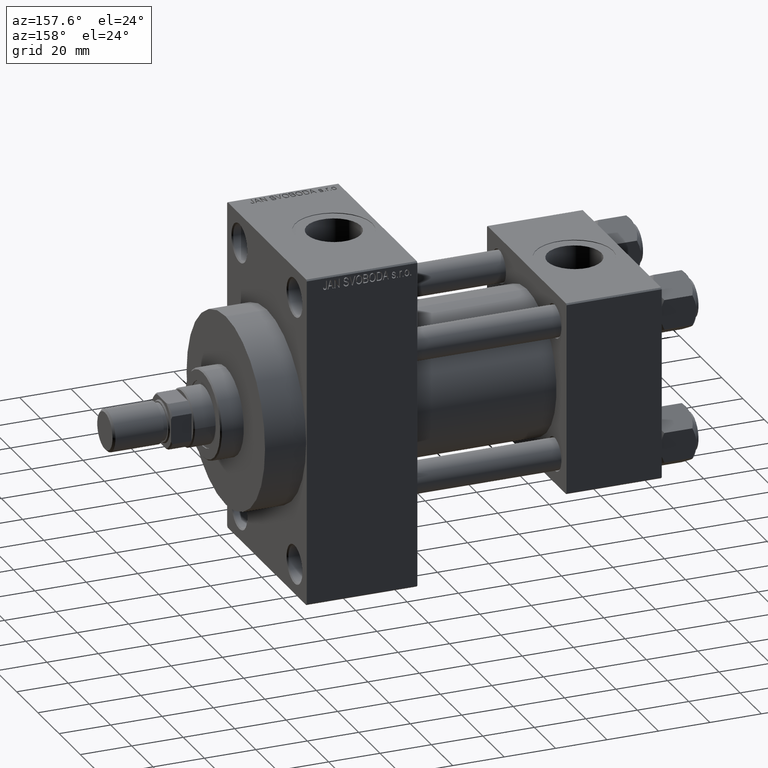
[diagram: clean part render]
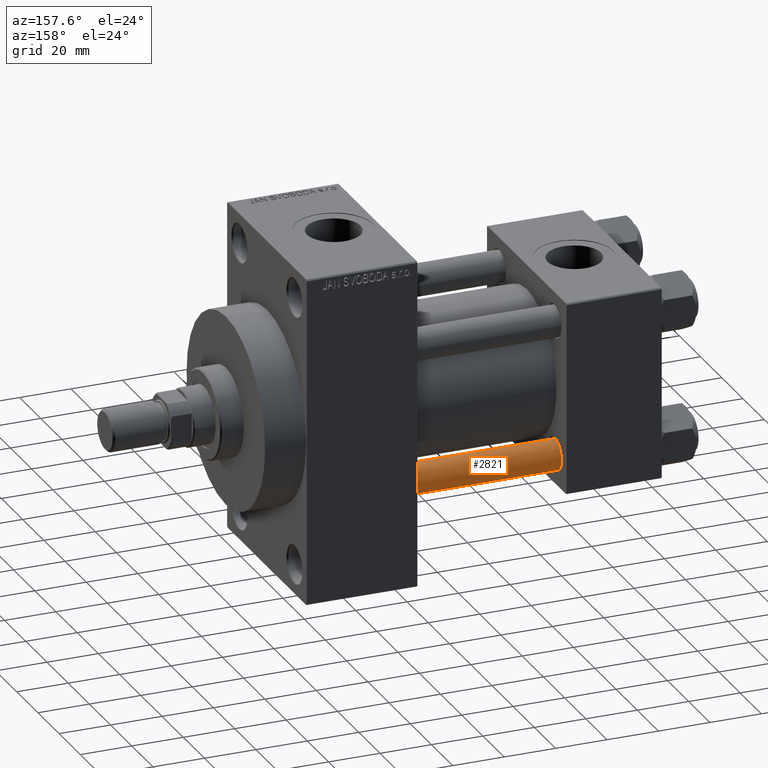
[diagram: same view with one face highlighted and labeled with its STEP entity id]
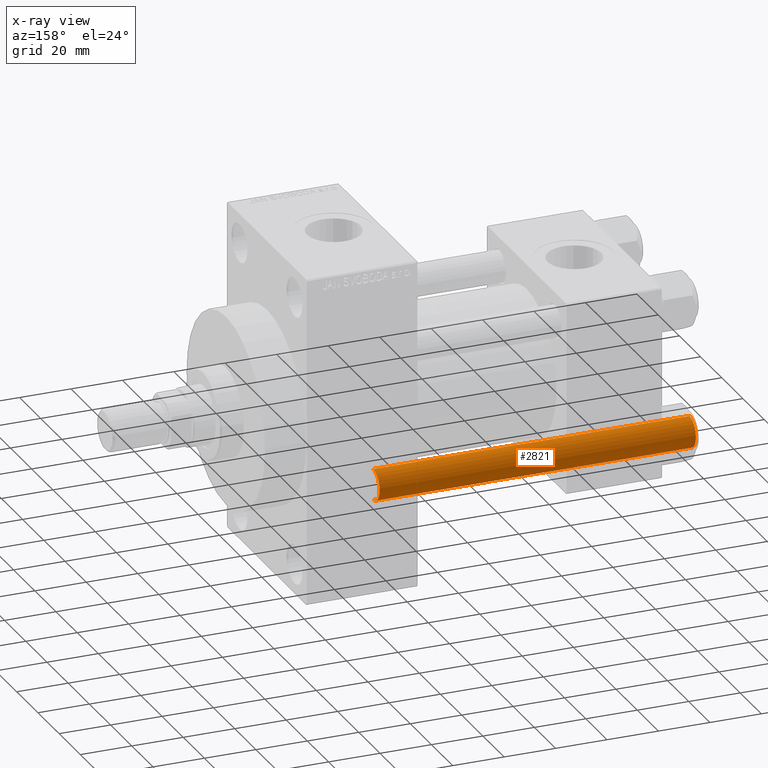
[diagram: x-ray of the same camera — body ghosted, the highlighted face saturated]
A machine part, auxiliary view. The second image highlights one B-rep face of the part: STEP entity #2821.
The next image is the same camera in x-ray: the body ghosted, the highlighted face saturated — about 0% of this face is hidden behind the body in this view.
In plain terms, the highlighted cylindrical surface (edge-blend (fillet) strip) has radius 6 mm, axis along (-1, -0, 0).
Its self-contained STEP definition (entity closure, byte-faithful):
#311 = AXIS2_PLACEMENT_3D ( 'NONE', #5234, #24478, #5459 ) ;
#835 = EDGE_CURVE ( 'NONE', #28474, #23954, #3345, .T. ) ;
#967 = AXIS2_PLACEMENT_3D ( 'NONE', #23899, #23435, #27051 ) ;
#2082 = FACE_OUTER_BOUND ( 'NONE', #7918, .T. ) ;
#2821 = ADVANCED_FACE ( 'NONE', ( #2082 ), #16778, .T. ) ;
#3345 = CIRCLE ( 'NONE', #33344, 6.000000000000000888 ) ;
#4822 = CIRCLE ( 'NONE', #967, 6.000000000000000888 ) ;
#5234 = CARTESIAN_POINT ( 'NONE',  ( 0.000000000000000000, 0.000000000000000000, 124.0000000000000000 ) ) ;
#5459 = DIRECTION ( 'NONE',  ( -1.000000000000000000, 0.000000000000000000, 0.000000000000000000 ) ) ;
#6978 = LINE ( 'NONE', #18070, #39544 ) ;
#7769 = ORIENTED_EDGE ( 'NONE', *, *, #15449, .T. ) ;
#7918 = EDGE_LOOP ( 'NONE', ( #7769, #9005, #15051, #10514 ) ) ;
#9005 = ORIENTED_EDGE ( 'NONE', *, *, #43031, .T. ) ;
#10514 = ORIENTED_EDGE ( 'NONE', *, *, #20252, .F. ) ;
#11154 = VECTOR ( 'NONE', #43770, 1000.000000000000000 ) ;
#11891 = CARTESIAN_POINT ( 'NONE',  ( 0.000000000000000000, 0.000000000000000000, 0.4999999999999865663 ) ) ;
#14838 = CARTESIAN_POINT ( 'NONE',  ( -6.000000000000000888, 0.000000000000000000, 124.0000000000000000 ) ) ;
#15051 = ORIENTED_EDGE ( 'NONE', *, *, #835, .T. ) ;
#15378 = CARTESIAN_POINT ( 'NONE',  ( -6.000000000000000888, 0.000000000000000000, 0.4999999999999865663 ) ) ;
#15449 = EDGE_CURVE ( 'NONE', #39922, #35637, #4822, .T. ) ;
#16778 = CYLINDRICAL_SURFACE ( 'NONE', #311, 6.000000000000000888 ) ;
#17064 = CARTESIAN_POINT ( 'NONE',  ( -6.000000000000000888, 0.000000000000000000, 123.5000000000000426 ) ) ;
#18070 = CARTESIAN_POINT ( 'NONE',  ( 6.000000000000000888, 7.347880794884120722E-16, 124.0000000000000000 ) ) ;
#19610 = DIRECTION ( 'NONE',  ( -0.000000000000000000, -0.000000000000000000, 1.000000000000000000 ) ) ;
#20252 = EDGE_CURVE ( 'NONE', #39922, #23954, #47632, .T. ) ;
#23435 = DIRECTION ( 'NONE',  ( 0.000000000000000000, 0.000000000000000000, -1.000000000000000000 ) ) ;
#23899 = CARTESIAN_POINT ( 'NONE',  ( 0.000000000000000000, 0.000000000000000000, 123.5000000000000426 ) ) ;
#23954 = VERTEX_POINT ( 'NONE', #15378 ) ;
#24478 = DIRECTION ( 'NONE',  ( -0.000000000000000000, -0.000000000000000000, -1.000000000000000000 ) ) ;
#27051 = DIRECTION ( 'NONE',  ( 1.000000000000000000, 0.000000000000000000, 0.000000000000000000 ) ) ;
#28474 = VERTEX_POINT ( 'NONE', #42763 ) ;
#33344 = AXIS2_PLACEMENT_3D ( 'NONE', #11891, #19610, #40817 ) ;
#34125 = CARTESIAN_POINT ( 'NONE',  ( 6.000000000000000888, 7.347880794884120722E-16, 123.5000000000000426 ) ) ;
#35637 = VERTEX_POINT ( 'NONE', #34125 ) ;
#39544 = VECTOR ( 'NONE', #45106, 1000.000000000000000 ) ;
#39922 = VERTEX_POINT ( 'NONE', #17064 ) ;
#40817 = DIRECTION ( 'NONE',  ( 1.000000000000000000, 0.000000000000000000, 0.000000000000000000 ) ) ;
#42763 = CARTESIAN_POINT ( 'NONE',  ( 6.000000000000000888, 7.347880794884120722E-16, 0.4999999999999865663 ) ) ;
#43031 = EDGE_CURVE ( 'NONE', #35637, #28474, #6978, .T. ) ;
#43770 = DIRECTION ( 'NONE',  ( -0.000000000000000000, -0.000000000000000000, -1.000000000000000000 ) ) ;
#45106 = DIRECTION ( 'NONE',  ( -0.000000000000000000, -0.000000000000000000, -1.000000000000000000 ) ) ;
#47632 = LINE ( 'NONE', #14838, #11154 ) ;